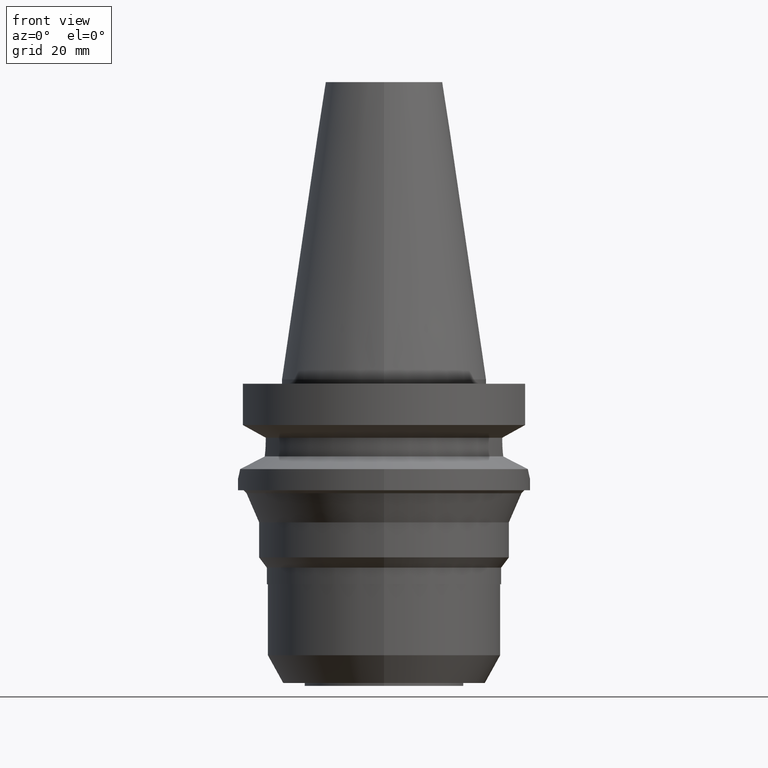
[diagram: clean part render]
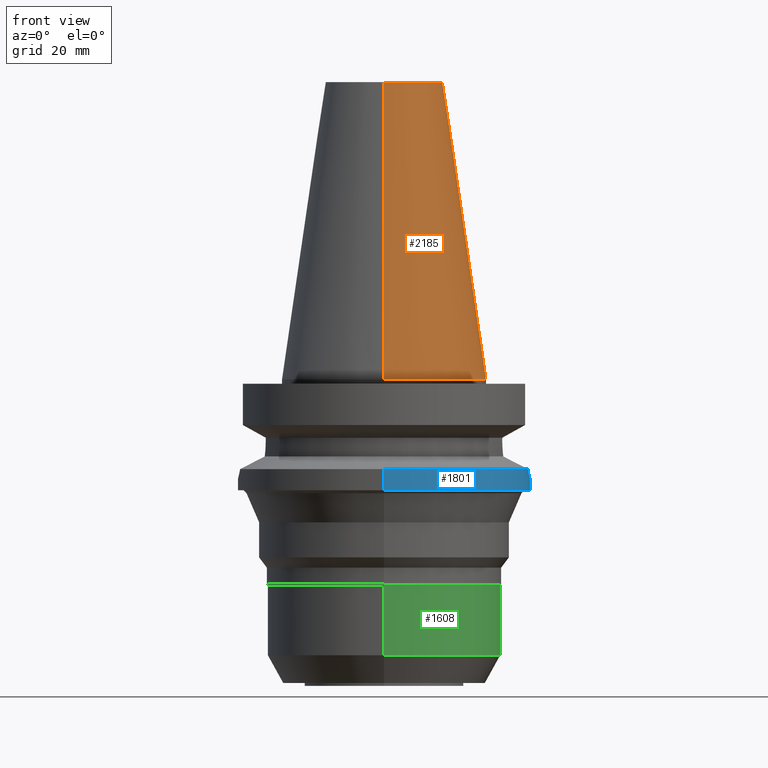
[diagram: same view with three faces highlighted in distinct colors, each labeled with its STEP entity id]
A machine part, front view with three faces highlighted in distinct colors.
Their STEP definitions:

[orange] entity #2185 — the highlighted conical surface has half-angle 8.297 deg.
#1068=DIRECTION('',(0.E0,-1.443043893539E-1,-9.895333461856E-1));
#1069=VECTOR('',#1068,1.028767755957E2);
#1070=CARTESIAN_POINT('',(0.E0,-2.007942971896E1,1.018E2));
#1071=LINE('',#1070,#1069);
#1083=DIRECTION('',(0.E0,1.443043893539E-1,-9.895333461856E-1));
#1084=VECTOR('',#1083,1.028767755957E2);
#1085=CARTESIAN_POINT('',(0.E0,2.007942971896E1,1.018E2));
#1086=LINE('',#1085,#1084);
#1090=CARTESIAN_POINT('',(0.E0,1.847992019913E-14,3.979039320257E-13));
#1091=DIRECTION('',(0.E0,0.E0,-1.E0));
#1092=DIRECTION('',(0.E0,1.E0,0.E0));
#1093=AXIS2_PLACEMENT_3D('',#1090,#1091,#1092);
#1106=CARTESIAN_POINT('',(0.E0,1.847992019913E-14,1.018E2));
#1107=DIRECTION('',(0.E0,0.E0,-1.E0));
#1108=DIRECTION('',(0.E0,1.E0,0.E0));
#1109=AXIS2_PLACEMENT_3D('',#1106,#1107,#1108);
#1287=CARTESIAN_POINT('',(0.E0,3.4925E1,3.339550858072E-13));
#1288=VERTEX_POINT('',#1287);
#1289=CARTESIAN_POINT('',(0.E0,-3.4925E1,3.339550858072E-13));
#1290=VERTEX_POINT('',#1289);
#1291=CARTESIAN_POINT('',(0.E0,2.007942971896E1,1.018E2));
#1292=VERTEX_POINT('',#1291);
#1293=CARTESIAN_POINT('',(0.E0,-2.007942971896E1,1.018E2));
#1294=VERTEX_POINT('',#1293);
#2173=CARTESIAN_POINT('',(0.E0,1.847992019913E-14,5.09E1));
#2174=DIRECTION('',(0.E0,0.E0,-1.E0));
#2175=DIRECTION('',(0.E0,-1.E0,0.E0));
#2176=AXIS2_PLACEMENT_3D('',#2173,#2174,#2175);
#2177=CONICAL_SURFACE('',#2176,2.750221485948E1,8.297E0);
#2178=ORIENTED_EDGE('',*,*,#2163,.T.);
#2179=ORIENTED_EDGE('',*,*,#2140,.T.);
#2180=ORIENTED_EDGE('',*,*,#2167,.F.);
#2182=ORIENTED_EDGE('',*,*,#2181,.F.);
#2183=EDGE_LOOP('',(#2178,#2179,#2180,#2182));
#2184=FACE_OUTER_BOUND('',#2183,.F.);
#1094=CIRCLE('',#1093,3.4925E1);
#1110=CIRCLE('',#1109,2.007942971896E1);
#2140=EDGE_CURVE('',#1288,#1290,#1094,.T.);
#2163=EDGE_CURVE('',#1292,#1288,#1086,.T.);
#2167=EDGE_CURVE('',#1294,#1290,#1071,.T.);
#2181=EDGE_CURVE('',#1292,#1294,#1110,.T.);
#2185=ADVANCED_FACE('',(#2184),#2177,.T.);

[blue] entity #1801 — the highlighted cylindrical surface (partial cylindrical patch) has radius 50 mm, axis along (0, 0, -1).
#488=CARTESIAN_POINT('',(0.E0,2.597965719711E-14,-3.8E1));
#489=DIRECTION('',(0.E0,0.E0,1.E0));
#490=DIRECTION('',(0.E0,-1.E0,0.E0));
#491=AXIS2_PLACEMENT_3D('',#488,#489,#490);
#520=CARTESIAN_POINT('',(4.926250064874E1,-8.556052234130E0,-3.073730776427E1));
#521=CARTESIAN_POINT('',(4.936649611958E1,-7.957285792575E0,-3.127166809524E1));
#522=CARTESIAN_POINT('',(4.956428496855E1,-6.687832623324E0,-3.220416769685E1));
#523=CARTESIAN_POINT('',(4.980480412100E1,-4.595876696259E0,-3.322690243424E1));
#524=CARTESIAN_POINT('',(4.996455573366E1,-2.307453981209E0,-3.386325285715E1));
#525=CARTESIAN_POINT('',(5.E1,-7.763522324051E-1,-3.4E1));
#526=CARTESIAN_POINT('',(5.E1,1.758225409536E-14,-3.4E1));
#531=CARTESIAN_POINT('',(5.E1,1.758225409536E-14,-3.4E1));
#532=CARTESIAN_POINT('',(5.E1,7.764873758784E-1,-3.4E1));
#533=CARTESIAN_POINT('',(4.996454298092E1,2.307787695182E0,-3.386320330492E1));
#534=CARTESIAN_POINT('',(4.980476725342E1,4.596271102309E0,-3.322675214137E1));
#535=CARTESIAN_POINT('',(4.956424417380E1,6.688114634516E0,-3.220398525577E1));
#536=CARTESIAN_POINT('',(4.936647870431E1,7.957386063113E0,-3.127157861027E1));
#537=CARTESIAN_POINT('',(4.926250064874E1,8.556052234130E0,-3.073730776427E1));
#542=DIRECTION('',(0.E0,2.152361642122E-14,-1.E0));
#543=VECTOR('',#542,7.262692235730E0);
#544=CARTESIAN_POINT('',(0.E0,5.E1,-3.073730776427E1));
#545=LINE('',#544,#543);
#600=CARTESIAN_POINT('',(0.E0,0.E0,-3.073730776427E1));
#601=DIRECTION('',(0.E0,0.E0,-1.E0));
#602=DIRECTION('',(9.852500129747E-1,-1.711210446826E-1,0.E0));
#603=AXIS2_PLACEMENT_3D('',#600,#601,#602);
#644=DIRECTION('',(0.E0,-2.054527022026E-14,-1.E0));
#645=VECTOR('',#644,7.262692235730E0);
#646=CARTESIAN_POINT('',(0.E0,-5.E1,-3.073730776427E1));
#647=LINE('',#646,#645);
#670=CARTESIAN_POINT('',(0.E0,0.E0,-3.073730776427E1));
#671=DIRECTION('',(0.E0,0.E0,-1.E0));
#672=DIRECTION('',(0.E0,1.E0,0.E0));
#673=AXIS2_PLACEMENT_3D('',#670,#671,#672);
#1210=CARTESIAN_POINT('',(0.E0,-5.E1,-3.8E1));
#1211=CARTESIAN_POINT('',(0.E0,5.E1,-3.8E1));
#1212=VERTEX_POINT('',#1210);
#1213=VERTEX_POINT('',#1211);
#1214=VERTEX_POINT('',#531);
#1215=VERTEX_POINT('',#537);
#1216=VERTEX_POINT('',#520);
#1217=CARTESIAN_POINT('',(0.E0,5.E1,-3.073730776427E1));
#1218=VERTEX_POINT('',#1217);
#1219=CARTESIAN_POINT('',(0.E0,-5.E1,-3.073730776427E1));
#1220=VERTEX_POINT('',#1219);
#1781=CARTESIAN_POINT('',(0.E0,2.597965719711E-14,1.1214E2));
#1782=DIRECTION('',(0.E0,0.E0,-1.E0));
#1783=DIRECTION('',(0.E0,-1.E0,0.E0));
#1784=AXIS2_PLACEMENT_3D('',#1781,#1782,#1783);
#1785=CYLINDRICAL_SURFACE('',#1784,5.E1);
#1787=ORIENTED_EDGE('',*,*,#1786,.T.);
#1789=ORIENTED_EDGE('',*,*,#1788,.T.);
#1791=ORIENTED_EDGE('',*,*,#1790,.F.);
#1793=ORIENTED_EDGE('',*,*,#1792,.T.);
#1794=ORIENTED_EDGE('',*,*,#1770,.F.);
#1796=ORIENTED_EDGE('',*,*,#1795,.F.);
#1798=ORIENTED_EDGE('',*,*,#1797,.F.);
#1799=EDGE_LOOP('',(#1787,#1789,#1791,#1793,#1794,#1796,#1798));
#1800=FACE_OUTER_BOUND('',#1799,.F.);
#492=CIRCLE('',#491,5.E1);
#527=B_SPLINE_CURVE_WITH_KNOTS('',3,(#520,#521,#522,#523,#524,#525,#526),
.UNSPECIFIED.,.F.,.F.,(4,1,1,1,4),(0.E0,2.5E-1,5.E-1,7.5E-1,1.E0),
.UNSPECIFIED.);
#538=B_SPLINE_CURVE_WITH_KNOTS('',3,(#531,#532,#533,#534,#535,#536,#537),
.UNSPECIFIED.,.F.,.F.,(4,1,1,1,4),(0.E0,2.5E-1,5.E-1,7.5E-1,1.E0),
.UNSPECIFIED.);
#604=CIRCLE('',#603,5.E1);
#674=CIRCLE('',#673,5.E1);
#1770=EDGE_CURVE('',#1212,#1213,#492,.T.);
#1786=EDGE_CURVE('',#1216,#1214,#527,.T.);
#1788=EDGE_CURVE('',#1214,#1215,#538,.T.);
#1790=EDGE_CURVE('',#1218,#1215,#674,.T.);
#1792=EDGE_CURVE('',#1218,#1213,#545,.T.);
#1795=EDGE_CURVE('',#1220,#1212,#647,.T.);
#1797=EDGE_CURVE('',#1216,#1220,#604,.T.);
#1801=ADVANCED_FACE('',(#1800),#1785,.T.);

[green] entity #1608 — the highlighted cylindrical surface (partial cylindrical patch) has radius 40 mm, axis along (0, 0, -1).
#285=CARTESIAN_POINT('',(0.E0,0.E0,-9.45E1));
#286=DIRECTION('',(0.E0,0.E0,1.E0));
#287=DIRECTION('',(0.E0,-1.E0,0.E0));
#288=AXIS2_PLACEMENT_3D('',#285,#286,#287);
#308=DIRECTION('',(0.E0,-1.140377230232E-14,-1.E0));
#309=VECTOR('',#308,2.43E1);
#310=CARTESIAN_POINT('',(0.E0,-4.E1,-7.02E1));
#311=LINE('',#310,#309);
#315=DIRECTION('',(0.E0,1.111136788431E-14,-1.E0));
#316=VECTOR('',#315,2.43E1);
#317=CARTESIAN_POINT('',(0.E0,4.E1,-7.02E1));
#318=LINE('',#317,#316);
#346=CARTESIAN_POINT('',(0.E0,2.597965719711E-14,-7.02E1));
#347=DIRECTION('',(0.E0,0.E0,-1.E0));
#348=DIRECTION('',(0.E0,1.E0,0.E0));
#349=AXIS2_PLACEMENT_3D('',#346,#347,#348);
#1178=CARTESIAN_POINT('',(0.E0,4.E1,-9.45E1));
#1179=VERTEX_POINT('',#1178);
#1180=CARTESIAN_POINT('',(0.E0,-4.E1,-9.45E1));
#1181=VERTEX_POINT('',#1180);
#1182=CARTESIAN_POINT('',(0.E0,4.E1,-7.02E1));
#1183=VERTEX_POINT('',#1182);
#1184=CARTESIAN_POINT('',(0.E0,-4.E1,-7.02E1));
#1185=VERTEX_POINT('',#1184);
#1596=CARTESIAN_POINT('',(0.E0,2.597965719711E-14,1.1214E2));
#1597=DIRECTION('',(0.E0,0.E0,-1.E0));
#1598=DIRECTION('',(0.E0,-1.E0,0.E0));
#1599=AXIS2_PLACEMENT_3D('',#1596,#1597,#1598);
#1600=CYLINDRICAL_SURFACE('',#1599,4.E1);
#1601=ORIENTED_EDGE('',*,*,#1586,.T.);
#1602=ORIENTED_EDGE('',*,*,#1563,.F.);
#1603=ORIENTED_EDGE('',*,*,#1590,.F.);
#1605=ORIENTED_EDGE('',*,*,#1604,.F.);
#1606=EDGE_LOOP('',(#1601,#1602,#1603,#1605));
#1607=FACE_OUTER_BOUND('',#1606,.F.);
#289=CIRCLE('',#288,4.E1);
#350=CIRCLE('',#349,4.E1);
#1563=EDGE_CURVE('',#1181,#1179,#289,.T.);
#1586=EDGE_CURVE('',#1183,#1179,#318,.T.);
#1590=EDGE_CURVE('',#1185,#1181,#311,.T.);
#1604=EDGE_CURVE('',#1183,#1185,#350,.T.);
#1608=ADVANCED_FACE('',(#1607),#1600,.T.);